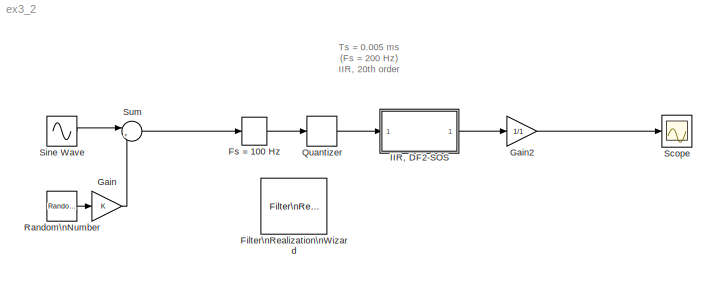
MODEL ex3_2
KIND model
BLOCK [Reference] Filter\nRealization\nWizard  REF=dsparch4/Filter\nRealization\nWizard
  FunctionWithSeparateData = off
  Ports = []
  RTWMemSecDataConstants = Inherit from model
  RTWMemSecDataInternal = Inherit from model
  RTWMemSecDataParameters = Inherit from model
  RTWMemSecFuncExecute = Inherit from model
  RTWMemSecFuncInitTerm = Inherit from model
  SID = 1
  ShowPortLabels = FromPortIcon
  SourceBlock = dsparch4/Filter\nRealization\nWizard
  SourceProductBaseCode = DS
  SourceProductName = DSP System Toolbox
  SourceType = Filter Realization Wizard
  SystemSampleTime = -1
BLOCK [ZeroOrderHold] Fs = 100 Hz
  SID = 2
  SampleTime = 0.01
BLOCK [Gain] Gain
  SID = 3
BLOCK [Gain] Gain2
  Gain = 1/1
  SID = 4
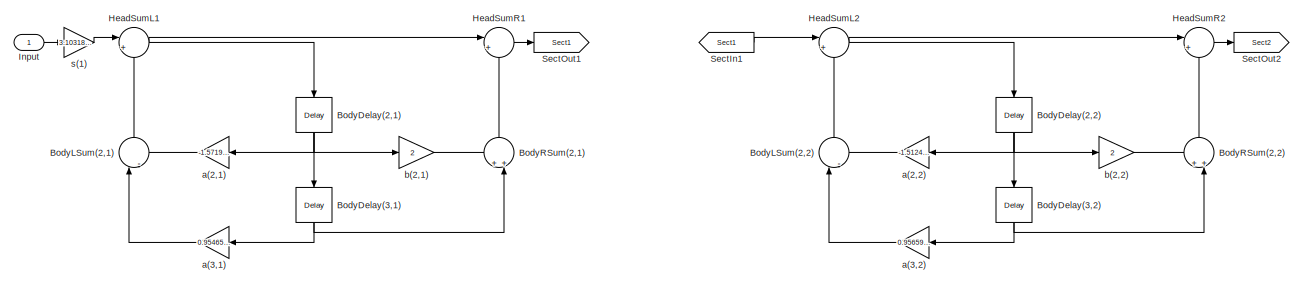
[diagram: IIR, DF2-SOS - part 1/6, left side, full height]
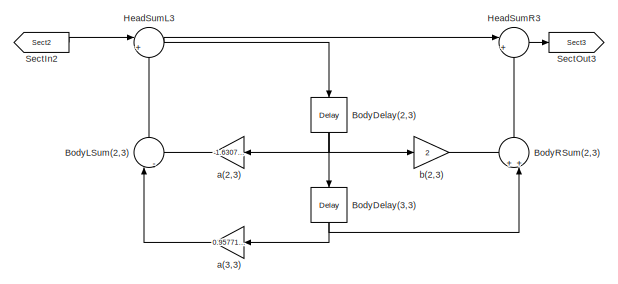
[diagram: IIR, DF2-SOS - part 2/6, left side, full height]
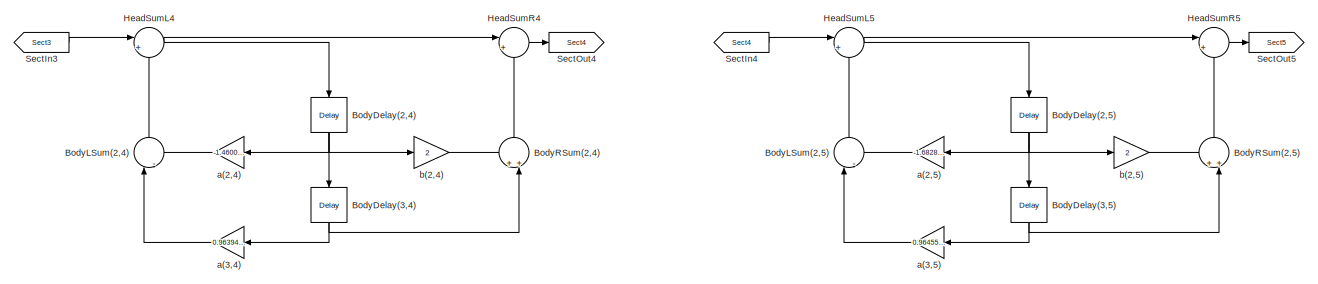
[diagram: IIR, DF2-SOS - part 3/6, center side, full height]
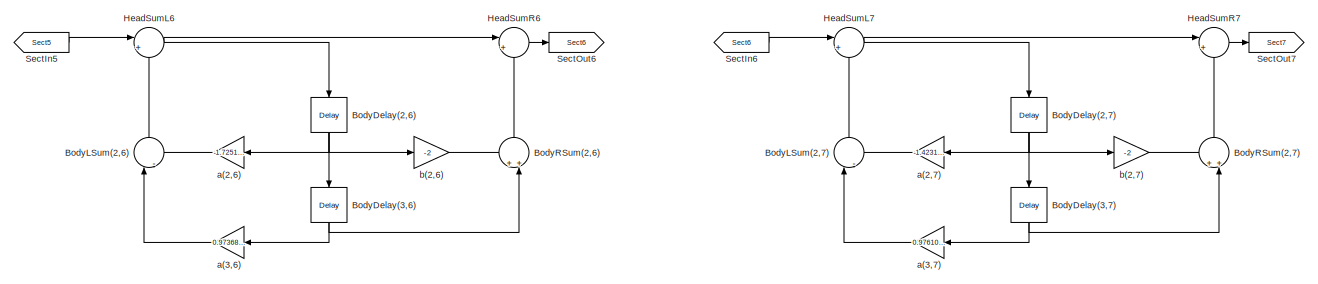
[diagram: IIR, DF2-SOS - part 4/6, center side, full height]
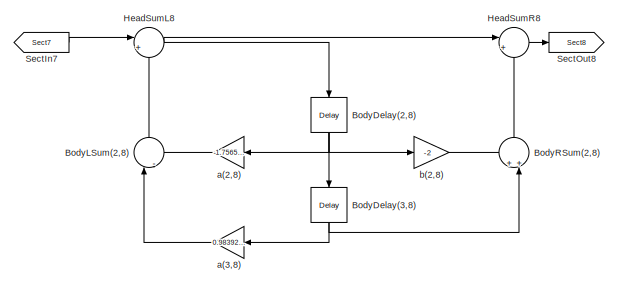
[diagram: IIR, DF2-SOS - part 5/6, right side, full height]
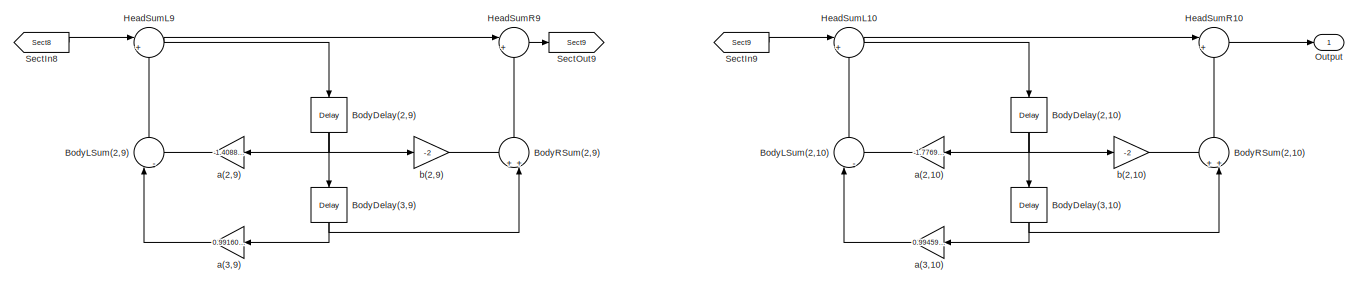
[diagram: IIR, DF2-SOS - part 6/6, right side, full height]
BLOCK [SubSystem] IIR, DF2-SOS
  Ports = [1, 1]
  RequestExecContextInheritance = off
  SID = 5
  Tag = FilterWizardSubSystem
BLOCK [Reference] IIR, DF2-SOS/BodyDelay(2,1)  REF=dspsigops/Delay
  Ports = [1, 1]
  SID = 7
  SourceBlock = dspsigops/Delay
  SourceProductBaseCode = DS
  SourceProductName = DSP System Toolbox
  SourceType = Delay
  delay = 1
  dif_ic_for_ch = off
  dif_ic_for_dly = off
  dly_unit = Samples
  ic = 0
  ic_detail = off
  reset_popup = None
BLOCK [Reference] IIR, DF2-SOS/BodyDelay(2,10)  REF=dspsigops/Delay
  Ports = [1, 1]
  SID = 8
  SourceBlock = dspsigops/Delay
  SourceProductBaseCode = DS
  SourceProductName = DSP System Toolbox
  SourceType = Delay
  delay = 1
  dif_ic_for_ch = off
  dif_ic_for_dly = off
  dly_unit = Samples
  ic = 0
  ic_detail = off
  reset_popup = None
BLOCK [Reference] IIR, DF2-SOS/BodyDelay(2,2)  REF=dspsigops/Delay
  Ports = [1, 1]
  SID = 9
  SourceBlock = dspsigops/Delay
  SourceProductBaseCode = DS
  SourceProductName = DSP System Toolbox
  SourceType = Delay
  delay = 1
  dif_ic_for_ch = off
  dif_ic_for_dly = off
  dly_unit = Samples
  ic = 0
  ic_detail = off
  reset_popup = None
BLOCK [Reference] IIR, DF2-SOS/BodyDelay(2,3)  REF=dspsigops/Delay
  Ports = [1, 1]
  SID = 10
  SourceBlock = dspsigops/Delay
  SourceProductBaseCode = DS
  SourceProductName = DSP System Toolbox
  SourceType = Delay
  delay = 1
  dif_ic_for_ch = off
  dif_ic_for_dly = off
  dly_unit = Samples
  ic = 0
  ic_detail = off
  reset_popup = None
BLOCK [Reference] IIR, DF2-SOS/BodyDelay(2,4)  REF=dspsigops/Delay
  Ports = [1, 1]
  SID = 11
  SourceBlock = dspsigops/Delay
  SourceProductBaseCode = DS
  SourceProductName = DSP System Toolbox
  SourceType = Delay
  delay = 1
  dif_ic_for_ch = off
  dif_ic_for_dly = off
  dly_unit = Samples
  ic = 0
  ic_detail = off
  reset_popup = None
BLOCK [Reference] IIR, DF2-SOS/BodyDelay(2,5)  REF=dspsigops/Delay
  Ports = [1, 1]
  SID = 12
  SourceBlock = dspsigops/Delay
  SourceProductBaseCode = DS
  SourceProductName = DSP System Toolbox
  SourceType = Delay
  delay = 1
  dif_ic_for_ch = off
  dif_ic_for_dly = off
  dly_unit = Samples
  ic = 0
  ic_detail = off
  reset_popup = None
BLOCK [Reference] IIR, DF2-SOS/BodyDelay(2,6)  REF=dspsigops/Delay
  Ports = [1, 1]
  SID = 13
  SourceBlock = dspsigops/Delay
  SourceProductBaseCode = DS
  SourceProductName = DSP System Toolbox
  SourceType = Delay
  delay = 1
  dif_ic_for_ch = off
  dif_ic_for_dly = off
  dly_unit = Samples
  ic = 0
  ic_detail = off
  reset_popup = None
BLOCK [Reference] IIR, DF2-SOS/BodyDelay(2,7)  REF=dspsigops/Delay
  Ports = [1, 1]
  SID = 14
  SourceBlock = dspsigops/Delay
  SourceProductBaseCode = DS
  SourceProductName = DSP System Toolbox
  SourceType = Delay
  delay = 1
  dif_ic_for_ch = off
  dif_ic_for_dly = off
  dly_unit = Samples
  ic = 0
  ic_detail = off
  reset_popup = None
BLOCK [Reference] IIR, DF2-SOS/BodyDelay(2,8)  REF=dspsigops/Delay
  Ports = [1, 1]
  SID = 15
  SourceBlock = dspsigops/Delay
  SourceProductBaseCode = DS
  SourceProductName = DSP System Toolbox
  SourceType = Delay
  delay = 1
  dif_ic_for_ch = off
  dif_ic_for_dly = off
  dly_unit = Samples
  ic = 0
  ic_detail = off
  reset_popup = None
BLOCK [Reference] IIR, DF2-SOS/BodyDelay(2,9)  REF=dspsigops/Delay
  Ports = [1, 1]
  SID = 16
  SourceBlock = dspsigops/Delay
  SourceProductBaseCode = DS
  SourceProductName = DSP System Toolbox
  SourceType = Delay
  delay = 1
  dif_ic_for_ch = off
  dif_ic_for_dly = off
  dly_unit = Samples
  ic = 0
  ic_detail = off
  reset_popup = None
BLOCK [Reference] IIR, DF2-SOS/BodyDelay(3,1)  REF=dspsigops/Delay
  Ports = [1, 1]
  SID = 17
  SourceBlock = dspsigops/Delay
  SourceProductBaseCode = DS
  SourceProductName = DSP System Toolbox
  SourceType = Delay
  delay = 1
  dif_ic_for_ch = off
  dif_ic_for_dly = off
  dly_unit = Samples
  ic = 0
  ic_detail = off
  reset_popup = None
BLOCK [Reference] IIR, DF2-SOS/BodyDelay(3,10)  REF=dspsigops/Delay
  Ports = [1, 1]
  SID = 18
  SourceBlock = dspsigops/Delay
  SourceProductBaseCode = DS
  SourceProductName = DSP System Toolbox
  SourceType = Delay
  delay = 1
  dif_ic_for_ch = off
  dif_ic_for_dly = off
  dly_unit = Samples
  ic = 0
  ic_detail = off
  reset_popup = None
BLOCK [Reference] IIR, DF2-SOS/BodyDelay(3,2)  REF=dspsigops/Delay
  Ports = [1, 1]
  SID = 19
  SourceBlock = dspsigops/Delay
  SourceProductBaseCode = DS
  SourceProductName = DSP System Toolbox
  SourceType = Delay
  delay = 1
  dif_ic_for_ch = off
  dif_ic_for_dly = off
  dly_unit = Samples
  ic = 0
  ic_detail = off
  reset_popup = None
BLOCK [Reference] IIR, DF2-SOS/BodyDelay(3,3)  REF=dspsigops/Delay
  Ports = [1, 1]
  SID = 20
  SourceBlock = dspsigops/Delay
  SourceProductBaseCode = DS
  SourceProductName = DSP System Toolbox
  SourceType = Delay
  delay = 1
  dif_ic_for_ch = off
  dif_ic_for_dly = off
  dly_unit = Samples
  ic = 0
  ic_detail = off
  reset_popup = None
BLOCK [Reference] IIR, DF2-SOS/BodyDelay(3,4)  REF=dspsigops/Delay
  Ports = [1, 1]
  SID = 21
  SourceBlock = dspsigops/Delay
  SourceProductBaseCode = DS
  SourceProductName = DSP System Toolbox
  SourceType = Delay
  delay = 1
  dif_ic_for_ch = off
  dif_ic_for_dly = off
  dly_unit = Samples
  ic = 0
  ic_detail = off
  reset_popup = None
BLOCK [Reference] IIR, DF2-SOS/BodyDelay(3,5)  REF=dspsigops/Delay
  Ports = [1, 1]
  SID = 22
  SourceBlock = dspsigops/Delay
  SourceProductBaseCode = DS
  SourceProductName = DSP System Toolbox
  SourceType = Delay
  delay = 1
  dif_ic_for_ch = off
  dif_ic_for_dly = off
  dly_unit = Samples
  ic = 0
  ic_detail = off
  reset_popup = None
BLOCK [Reference] IIR, DF2-SOS/BodyDelay(3,6)  REF=dspsigops/Delay
  Ports = [1, 1]
  SID = 23
  SourceBlock = dspsigops/Delay
  SourceProductBaseCode = DS
  SourceProductName = DSP System Toolbox
  SourceType = Delay
  delay = 1
  dif_ic_for_ch = off
  dif_ic_for_dly = off
  dly_unit = Samples
  ic = 0
  ic_detail = off
  reset_popup = None
BLOCK [Reference] IIR, DF2-SOS/BodyDelay(3,7)  REF=dspsigops/Delay
  Ports = [1, 1]
  SID = 24
  SourceBlock = dspsigops/Delay
  SourceProductBaseCode = DS
  SourceProductName = DSP System Toolbox
  SourceType = Delay
  delay = 1
  dif_ic_for_ch = off
  dif_ic_for_dly = off
  dly_unit = Samples
  ic = 0
  ic_detail = off
  reset_popup = None
BLOCK [Reference] IIR, DF2-SOS/BodyDelay(3,8)  REF=dspsigops/Delay
  Ports = [1, 1]
  SID = 25
  SourceBlock = dspsigops/Delay
  SourceProductBaseCode = DS
  SourceProductName = DSP System Toolbox
  SourceType = Delay
  delay = 1
  dif_ic_for_ch = off
  dif_ic_for_dly = off
  dly_unit = Samples
  ic = 0
  ic_detail = off
  reset_popup = None
BLOCK [Reference] IIR, DF2-SOS/BodyDelay(3,9)  REF=dspsigops/Delay
  Ports = [1, 1]
  SID = 26
  SourceBlock = dspsigops/Delay
  SourceProductBaseCode = DS
  SourceProductName = DSP System Toolbox
  SourceType = Delay
  delay = 1
  dif_ic_for_ch = off
  dif_ic_for_dly = off
  dly_unit = Samples
  ic = 0
  ic_detail = off
  reset_popup = None
BLOCK [Sum] IIR, DF2-SOS/BodyLSum(2,1)
  IconShape = round
  Inputs = |--
  Ports = [2, 1]
  SID = 27
BLOCK [Sum] IIR, DF2-SOS/BodyLSum(2,10)
  IconShape = round
  Inputs = |--
  Ports = [2, 1]
  SID = 28
BLOCK [Sum] IIR, DF2-SOS/BodyLSum(2,2)
  IconShape = round
  Inputs = |--
  Ports = [2, 1]
  SID = 29
BLOCK [Sum] IIR, DF2-SOS/BodyLSum(2,3)
  IconShape = round
  Inputs = |--
  Ports = [2, 1]
  SID = 30
BLOCK [Sum] IIR, DF2-SOS/BodyLSum(2,4)
  IconShape = round
  Inputs = |--
  Ports = [2, 1]
  SID = 31
BLOCK [Sum] IIR, DF2-SOS/BodyLSum(2,5)
  IconShape = round
  Inputs = |--
  Ports = [2, 1]
  SID = 32
BLOCK [Sum] IIR, DF2-SOS/BodyLSum(2,6)
  IconShape = round
  Inputs = |--
  Ports = [2, 1]
  SID = 33
BLOCK [Sum] IIR, DF2-SOS/BodyLSum(2,7)
  IconShape = round
  Inputs = |--
  Ports = [2, 1]
  SID = 34
BLOCK [Sum] IIR, DF2-SOS/BodyLSum(2,8)
  IconShape = round
  Inputs = |--
  Ports = [2, 1]
  SID = 35
BLOCK [Sum] IIR, DF2-SOS/BodyLSum(2,9)
  IconShape = round
  Inputs = |--
  Ports = [2, 1]
  SID = 36
BLOCK [Sum] IIR, DF2-SOS/BodyRSum(2,1)
  IconShape = round
  Inputs = ++|
  Ports = [2, 1]
  SID = 37
BLOCK [Sum] IIR, DF2-SOS/BodyRSum(2,10)
  IconShape = round
  Inputs = ++|
  Ports = [2, 1]
  SID = 38
BLOCK [Sum] IIR, DF2-SOS/BodyRSum(2,2)
  IconShape = round
  Inputs = ++|
  Ports = [2, 1]
  SID = 39
BLOCK [Sum] IIR, DF2-SOS/BodyRSum(2,3)
  IconShape = round
  Inputs = ++|
  Ports = [2, 1]
  SID = 40
BLOCK [Sum] IIR, DF2-SOS/BodyRSum(2,4)
  IconShape = round
  Inputs = ++|
  Ports = [2, 1]
  SID = 41
BLOCK [Sum] IIR, DF2-SOS/BodyRSum(2,5)
  IconShape = round
  Inputs = ++|
  Ports = [2, 1]
  SID = 42
BLOCK [Sum] IIR, DF2-SOS/BodyRSum(2,6)
  IconShape = round
  Inputs = ++|
  Ports = [2, 1]
  SID = 43
BLOCK [Sum] IIR, DF2-SOS/BodyRSum(2,7)
  IconShape = round
  Inputs = ++|
  Ports = [2, 1]
  SID = 44
BLOCK [Sum] IIR, DF2-SOS/BodyRSum(2,8)
  IconShape = round
  Inputs = ++|
  Ports = [2, 1]
  SID = 45
BLOCK [Sum] IIR, DF2-SOS/BodyRSum(2,9)
  IconShape = round
  Inputs = ++|
  Ports = [2, 1]
  SID = 46
BLOCK [Sum] IIR, DF2-SOS/HeadSumL1
  IconShape = round
  Inputs = |++
  Ports = [2, 1]
  SID = 47
BLOCK [Sum] IIR, DF2-SOS/HeadSumL10
  IconShape = round
  Inputs = |++
  Ports = [2, 1]
  SID = 48
BLOCK [Sum] IIR, DF2-SOS/HeadSumL2
  IconShape = round
  Inputs = |++
  Ports = [2, 1]
  SID = 49
BLOCK [Sum] IIR, DF2-SOS/HeadSumL3
  IconShape = round
  Inputs = |++
  Ports = [2, 1]
  SID = 50
BLOCK [Sum] IIR, DF2-SOS/HeadSumL4
  IconShape = round
  Inputs = |++
  Ports = [2, 1]
  SID = 51
BLOCK [Sum] IIR, DF2-SOS/HeadSumL5
  IconShape = round
  Inputs = |++
  Ports = [2, 1]
  SID = 52
BLOCK [Sum] IIR, DF2-SOS/HeadSumL6
  IconShape = round
  Inputs = |++
  Ports = [2, 1]
  SID = 53
BLOCK [Sum] IIR, DF2-SOS/HeadSumL7
  IconShape = round
  Inputs = |++
  Ports = [2, 1]
  SID = 54
BLOCK [Sum] IIR, DF2-SOS/HeadSumL8
  IconShape = round
  Inputs = |++
  Ports = [2, 1]
  SID = 55
BLOCK [Sum] IIR, DF2-SOS/HeadSumL9
  IconShape = round
  Inputs = |++
  Ports = [2, 1]
  SID = 56
BLOCK [Sum] IIR, DF2-SOS/HeadSumR1
  IconShape = round
  Inputs = |++
  Ports = [2, 1]
  SID = 57
BLOCK [Sum] IIR, DF2-SOS/HeadSumR10
  IconShape = round
  Inputs = |++
  Ports = [2, 1]
  SID = 58
BLOCK [Sum] IIR, DF2-SOS/HeadSumR2
  IconShape = round
  Inputs = |++
  Ports = [2, 1]
  SID = 59
BLOCK [Sum] IIR, DF2-SOS/HeadSumR3
  IconShape = round
  Inputs = |++
  Ports = [2, 1]
  SID = 60
BLOCK [Sum] IIR, DF2-SOS/HeadSumR4
  IconShape = round
  Inputs = |++
  Ports = [2, 1]
  SID = 61
BLOCK [Sum] IIR, DF2-SOS/HeadSumR5
  IconShape = round
  Inputs = |++
  Ports = [2, 1]
  SID = 62
BLOCK [Sum] IIR, DF2-SOS/HeadSumR6
  IconShape = round
  Inputs = |++
  Ports = [2, 1]
  SID = 63
BLOCK [Sum] IIR, DF2-SOS/HeadSumR7
  IconShape = round
  Inputs = |++
  Ports = [2, 1]
  SID = 64
BLOCK [Sum] IIR, DF2-SOS/HeadSumR8
  IconShape = round
  Inputs = |++
  Ports = [2, 1]
  SID = 65
BLOCK [Sum] IIR, DF2-SOS/HeadSumR9
  IconShape = round
  Inputs = |++
  Ports = [2, 1]
  SID = 66
BLOCK [Inport] IIR, DF2-SOS/Input
  IconDisplay = Port number
  SID = 6
BLOCK [Outport] IIR, DF2-SOS/Output
  IconDisplay = Port number
  SID = 116
BLOCK [From] IIR, DF2-SOS/SectIn1
  GotoTag = Sect1
  SID = 67
BLOCK [From] IIR, DF2-SOS/SectIn2
  GotoTag = Sect2
  SID = 68
BLOCK [From] IIR, DF2-SOS/SectIn3
  GotoTag = Sect3
  SID = 69
BLOCK [From] IIR, DF2-SOS/SectIn4
  GotoTag = Sect4
  SID = 70
BLOCK [From] IIR, DF2-SOS/SectIn5
  GotoTag = Sect5
  SID = 71
BLOCK [From] IIR, DF2-SOS/SectIn6
  GotoTag = Sect6
  SID = 72
BLOCK [From] IIR, DF2-SOS/SectIn7
  GotoTag = Sect7
  SID = 73
BLOCK [From] IIR, DF2-SOS/SectIn8
  GotoTag = Sect8
  SID = 74
BLOCK [From] IIR, DF2-SOS/SectIn9
  GotoTag = Sect9
  SID = 75
BLOCK [Goto] IIR, DF2-SOS/SectOut1
  GotoTag = Sect1
  SID = 76
BLOCK [Goto] IIR, DF2-SOS/SectOut2
  GotoTag = Sect2
  SID = 77
BLOCK [Goto] IIR, DF2-SOS/SectOut3
  GotoTag = Sect3
  SID = 78
BLOCK [Goto] IIR, DF2-SOS/SectOut4
  GotoTag = Sect4
  SID = 79
BLOCK [Goto] IIR, DF2-SOS/SectOut5
  GotoTag = Sect5
  SID = 80
BLOCK [Goto] IIR, DF2-SOS/SectOut6
  GotoTag = Sect6
  SID = 81
BLOCK [Goto] IIR, DF2-SOS/SectOut7
  GotoTag = Sect7
  SID = 82
BLOCK [Goto] IIR, DF2-SOS/SectOut8
  GotoTag = Sect8
  SID = 83
BLOCK [Goto] IIR, DF2-SOS/SectOut9
  GotoTag = Sect9
  SID = 84
BLOCK [Gain] IIR, DF2-SOS/a(2,1)
  Gain = -1.571957134859189
  SID = 85
BLOCK [Gain] IIR, DF2-SOS/a(2,10)
  Gain = -1.7769550987684477
  SID = 86
BLOCK [Gain] IIR, DF2-SOS/a(2,2)
  Gain = -1.5124257199420734
  SID = 87
BLOCK [Gain] IIR, DF2-SOS/a(2,3)
  Gain = -1.6307005687554179
  SID = 88
BLOCK [Gain] IIR, DF2-SOS/a(2,4)
  Gain = -1.4600014510225412
  SID = 89
BLOCK [Gain] IIR, DF2-SOS/a(2,5)
  Gain = -1.6828450672852706
  SID = 90
BLOCK [Gain] IIR, DF2-SOS/a(2,6)
  Gain = -1.7251650011265589
  SID = 91
BLOCK [Gain] IIR, DF2-SOS/a(2,7)
  Gain = -1.4231462269960193
  SID = 92
BLOCK [Gain] IIR, DF2-SOS/a(2,8)
  Gain = -1.7565348237792877
  SID = 93
BLOCK [Gain] IIR, DF2-SOS/a(2,9)
  Gain = -1.4088593630292474
  SID = 94
BLOCK [Gain] IIR, DF2-SOS/a(3,1)
  Gain = 0.95465049539857993
  SID = 95
BLOCK [Gain] IIR, DF2-SOS/a(3,10)
  Gain = 0.99459446942844321
  SID = 96
BLOCK [Gain] IIR, DF2-SOS/a(3,2)
  Gain = 0.95659285365218705
  SID = 97
BLOCK [Gain] IIR, DF2-SOS/a(3,3)
  Gain = 0.95771345361769511
  SID = 98
BLOCK [Gain] IIR, DF2-SOS/a(3,4)
  Gain = 0.96394950197178042
  SID = 99
BLOCK [Gain] IIR, DF2-SOS/a(3,5)
  Gain = 0.96455327914854605
  SID = 100
BLOCK [Gain] IIR, DF2-SOS/a(3,6)
  Gain = 0.97368699157284444
  SID = 101
BLOCK [Gain] IIR, DF2-SOS/a(3,7)
  Gain = 0.97610378923932517
  SID = 102
BLOCK [Gain] IIR, DF2-SOS/a(3,8)
  Gain = 0.98392539423157888
  SID = 103
BLOCK [Gain] IIR, DF2-SOS/a(3,9)
  Gain = 0.99160121115624866
  SID = 104
BLOCK [Gain] IIR, DF2-SOS/b(2,1)
  Gain = 2
  SID = 105
BLOCK [Gain] IIR, DF2-SOS/b(2,10)
  Gain = -2
  SID = 106
BLOCK [Gain] IIR, DF2-SOS/b(2,2)
  Gain = 2
  SID = 107
BLOCK [Gain] IIR, DF2-SOS/b(2,3)
  Gain = 2
  SID = 108
BLOCK [Gain] IIR, DF2-SOS/b(2,4)
  Gain = 2
  SID = 109
BLOCK [Gain] IIR, DF2-SOS/b(2,5)
  Gain = 2
  SID = 110
BLOCK [Gain] IIR, DF2-SOS/b(2,6)
  Gain = -2
  SID = 111
BLOCK [Gain] IIR, DF2-SOS/b(2,7)
  Gain = -2
  SID = 112
BLOCK [Gain] IIR, DF2-SOS/b(2,8)
  Gain = -2
  SID = 113
BLOCK [Gain] IIR, DF2-SOS/b(2,9)
  Gain = -2
  SID = 114
BLOCK [Gain] IIR, DF2-SOS/s(1)
  Gain = 3.1031894864125959e-011
  SID = 115
BLOCK [Quantizer] Quantizer
  LinearizeAsGain = off
  QuantizationInterval = 2/(2^6-1)
  SID = 117
BLOCK [RandomNumber] Random\nNumber
  SID = 118
  SampleTime = 0
  Variance = 1e-6
BLOCK [Scope] Scope
  Floating = off
  NumInputPorts = 1
  Ports = [1]
  SID = 119
  ScopeSpecificationString = C++SS(StrPVP('Location','[847, 449, 1201, 707]'),StrPVP('Open','off'),MxPVP('AxesTitles',54,'struct(''axes1'',''%<SignalLabel>'')'),StrPVP('TimeRange','1'),StrPVP('YMin','-1.5'),StrPVP('YMax','1.5'),StrPVP('SaveToWorkspace','on'),StrPVP('SaveName','y1'),StrPVP('DataFormat','StructureWithTime'),StrPVP('LimitDataPoints','on'),StrPVP('Decimation','1'),StrPVP('BlockParamSampleInput','off'))
BLOCK [Sin] Sine Wave
  Frequency = 2*pi*20
  Ports = [0, 1]
  SID = 120
  SampleTime = 0
BLOCK [Sum] Sum
  IconShape = round
  InputSameDT = off
  Inputs = |++
  OutDataTypeStr = Inherit: Inherit via internal rule
  Ports = [2, 1]
  SID = 121
ANNOTATION (root): Ts = 0.005 ms\n(Fs = 200 Hz)\nIIR, 20th order
LINE Fs = 100 Hz:1 -> Quantizer:1
LINE Gain2:1 -> Scope:1
LINE Gain:1 -> Sum:2
NET IIR, DF2-SOS/BodyDelay(2,1):1 -> IIR, DF2-SOS/BodyDelay(3,1):1, IIR, DF2-SOS/a(2,1):1, IIR, DF2-SOS/b(2,1):1
NET IIR, DF2-SOS/BodyDelay(2,10):1 -> IIR, DF2-SOS/BodyDelay(3,10):1, IIR, DF2-SOS/a(2,10):1, IIR, DF2-SOS/b(2,10):1
NET IIR, DF2-SOS/BodyDelay(2,2):1 -> IIR, DF2-SOS/BodyDelay(3,2):1, IIR, DF2-SOS/a(2,2):1, IIR, DF2-SOS/b(2,2):1
NET IIR, DF2-SOS/BodyDelay(2,3):1 -> IIR, DF2-SOS/BodyDelay(3,3):1, IIR, DF2-SOS/a(2,3):1, IIR, DF2-SOS/b(2,3):1
NET IIR, DF2-SOS/BodyDelay(2,4):1 -> IIR, DF2-SOS/BodyDelay(3,4):1, IIR, DF2-SOS/a(2,4):1, IIR, DF2-SOS/b(2,4):1
NET IIR, DF2-SOS/BodyDelay(2,5):1 -> IIR, DF2-SOS/BodyDelay(3,5):1, IIR, DF2-SOS/a(2,5):1, IIR, DF2-SOS/b(2,5):1
NET IIR, DF2-SOS/BodyDelay(2,6):1 -> IIR, DF2-SOS/BodyDelay(3,6):1, IIR, DF2-SOS/a(2,6):1, IIR, DF2-SOS/b(2,6):1
NET IIR, DF2-SOS/BodyDelay(2,7):1 -> IIR, DF2-SOS/BodyDelay(3,7):1, IIR, DF2-SOS/a(2,7):1, IIR, DF2-SOS/b(2,7):1
NET IIR, DF2-SOS/BodyDelay(2,8):1 -> IIR, DF2-SOS/BodyDelay(3,8):1, IIR, DF2-SOS/a(2,8):1, IIR, DF2-SOS/b(2,8):1
NET IIR, DF2-SOS/BodyDelay(2,9):1 -> IIR, DF2-SOS/BodyDelay(3,9):1, IIR, DF2-SOS/a(2,9):1, IIR, DF2-SOS/b(2,9):1
NET IIR, DF2-SOS/BodyDelay(3,1):1 -> IIR, DF2-SOS/BodyRSum(2,1):2, IIR, DF2-SOS/a(3,1):1
NET IIR, DF2-SOS/BodyDelay(3,10):1 -> IIR, DF2-SOS/BodyRSum(2,10):2, IIR, DF2-SOS/a(3,10):1
NET IIR, DF2-SOS/BodyDelay(3,2):1 -> IIR, DF2-SOS/BodyRSum(2,2):2, IIR, DF2-SOS/a(3,2):1
NET IIR, DF2-SOS/BodyDelay(3,3):1 -> IIR, DF2-SOS/BodyRSum(2,3):2, IIR, DF2-SOS/a(3,3):1
NET IIR, DF2-SOS/BodyDelay(3,4):1 -> IIR, DF2-SOS/BodyRSum(2,4):2, IIR, DF2-SOS/a(3,4):1
NET IIR, DF2-SOS/BodyDelay(3,5):1 -> IIR, DF2-SOS/BodyRSum(2,5):2, IIR, DF2-SOS/a(3,5):1
NET IIR, DF2-SOS/BodyDelay(3,6):1 -> IIR, DF2-SOS/BodyRSum(2,6):2, IIR, DF2-SOS/a(3,6):1
NET IIR, DF2-SOS/BodyDelay(3,7):1 -> IIR, DF2-SOS/BodyRSum(2,7):2, IIR, DF2-SOS/a(3,7):1
NET IIR, DF2-SOS/BodyDelay(3,8):1 -> IIR, DF2-SOS/BodyRSum(2,8):2, IIR, DF2-SOS/a(3,8):1
NET IIR, DF2-SOS/BodyDelay(3,9):1 -> IIR, DF2-SOS/BodyRSum(2,9):2, IIR, DF2-SOS/a(3,9):1
LINE IIR, DF2-SOS/BodyLSum(2,1):1 -> IIR, DF2-SOS/HeadSumL1:2
LINE IIR, DF2-SOS/BodyLSum(2,10):1 -> IIR, DF2-SOS/HeadSumL10:2
LINE IIR, DF2-SOS/BodyLSum(2,2):1 -> IIR, DF2-SOS/HeadSumL2:2
LINE IIR, DF2-SOS/BodyLSum(2,3):1 -> IIR, DF2-SOS/HeadSumL3:2
LINE IIR, DF2-SOS/BodyLSum(2,4):1 -> IIR, DF2-SOS/HeadSumL4:2
LINE IIR, DF2-SOS/BodyLSum(2,5):1 -> IIR, DF2-SOS/HeadSumL5:2
LINE IIR, DF2-SOS/BodyLSum(2,6):1 -> IIR, DF2-SOS/HeadSumL6:2
LINE IIR, DF2-SOS/BodyLSum(2,7):1 -> IIR, DF2-SOS/HeadSumL7:2
LINE IIR, DF2-SOS/BodyLSum(2,8):1 -> IIR, DF2-SOS/HeadSumL8:2
LINE IIR, DF2-SOS/BodyLSum(2,9):1 -> IIR, DF2-SOS/HeadSumL9:2
LINE IIR, DF2-SOS/BodyRSum(2,1):1 -> IIR, DF2-SOS/HeadSumR1:2
LINE IIR, DF2-SOS/BodyRSum(2,10):1 -> IIR, DF2-SOS/HeadSumR10:2
LINE IIR, DF2-SOS/BodyRSum(2,2):1 -> IIR, DF2-SOS/HeadSumR2:2
LINE IIR, DF2-SOS/BodyRSum(2,3):1 -> IIR, DF2-SOS/HeadSumR3:2
LINE IIR, DF2-SOS/BodyRSum(2,4):1 -> IIR, DF2-SOS/HeadSumR4:2
LINE IIR, DF2-SOS/BodyRSum(2,5):1 -> IIR, DF2-SOS/HeadSumR5:2
LINE IIR, DF2-SOS/BodyRSum(2,6):1 -> IIR, DF2-SOS/HeadSumR6:2
LINE IIR, DF2-SOS/BodyRSum(2,7):1 -> IIR, DF2-SOS/HeadSumR7:2
LINE IIR, DF2-SOS/BodyRSum(2,8):1 -> IIR, DF2-SOS/HeadSumR8:2
LINE IIR, DF2-SOS/BodyRSum(2,9):1 -> IIR, DF2-SOS/HeadSumR9:2
NET IIR, DF2-SOS/HeadSumL10:1 -> IIR, DF2-SOS/BodyDelay(2,10):1, IIR, DF2-SOS/HeadSumR10:1
NET IIR, DF2-SOS/HeadSumL1:1 -> IIR, DF2-SOS/BodyDelay(2,1):1, IIR, DF2-SOS/HeadSumR1:1
NET IIR, DF2-SOS/HeadSumL2:1 -> IIR, DF2-SOS/BodyDelay(2,2):1, IIR, DF2-SOS/HeadSumR2:1
NET IIR, DF2-SOS/HeadSumL3:1 -> IIR, DF2-SOS/BodyDelay(2,3):1, IIR, DF2-SOS/HeadSumR3:1
NET IIR, DF2-SOS/HeadSumL4:1 -> IIR, DF2-SOS/BodyDelay(2,4):1, IIR, DF2-SOS/HeadSumR4:1
NET IIR, DF2-SOS/HeadSumL5:1 -> IIR, DF2-SOS/BodyDelay(2,5):1, IIR, DF2-SOS/HeadSumR5:1
NET IIR, DF2-SOS/HeadSumL6:1 -> IIR, DF2-SOS/BodyDelay(2,6):1, IIR, DF2-SOS/HeadSumR6:1
NET IIR, DF2-SOS/HeadSumL7:1 -> IIR, DF2-SOS/BodyDelay(2,7):1, IIR, DF2-SOS/HeadSumR7:1
NET IIR, DF2-SOS/HeadSumL8:1 -> IIR, DF2-SOS/BodyDelay(2,8):1, IIR, DF2-SOS/HeadSumR8:1
NET IIR, DF2-SOS/HeadSumL9:1 -> IIR, DF2-SOS/BodyDelay(2,9):1, IIR, DF2-SOS/HeadSumR9:1
LINE IIR, DF2-SOS/HeadSumR10:1 -> IIR, DF2-SOS/Output:1
LINE IIR, DF2-SOS/HeadSumR1:1 -> IIR, DF2-SOS/SectOut1:1
LINE IIR, DF2-SOS/HeadSumR2:1 -> IIR, DF2-SOS/SectOut2:1
LINE IIR, DF2-SOS/HeadSumR3:1 -> IIR, DF2-SOS/SectOut3:1
LINE IIR, DF2-SOS/HeadSumR4:1 -> IIR, DF2-SOS/SectOut4:1
LINE IIR, DF2-SOS/HeadSumR5:1 -> IIR, DF2-SOS/SectOut5:1
LINE IIR, DF2-SOS/HeadSumR6:1 -> IIR, DF2-SOS/SectOut6:1
LINE IIR, DF2-SOS/HeadSumR7:1 -> IIR, DF2-SOS/SectOut7:1
LINE IIR, DF2-SOS/HeadSumR8:1 -> IIR, DF2-SOS/SectOut8:1
LINE IIR, DF2-SOS/HeadSumR9:1 -> IIR, DF2-SOS/SectOut9:1
LINE IIR, DF2-SOS/Input:1 -> IIR, DF2-SOS/s(1):1
LINE IIR, DF2-SOS/SectIn1:1 -> IIR, DF2-SOS/HeadSumL2:1
LINE IIR, DF2-SOS/SectIn2:1 -> IIR, DF2-SOS/HeadSumL3:1
LINE IIR, DF2-SOS/SectIn3:1 -> IIR, DF2-SOS/HeadSumL4:1
LINE IIR, DF2-SOS/SectIn4:1 -> IIR, DF2-SOS/HeadSumL5:1
LINE IIR, DF2-SOS/SectIn5:1 -> IIR, DF2-SOS/HeadSumL6:1
LINE IIR, DF2-SOS/SectIn6:1 -> IIR, DF2-SOS/HeadSumL7:1
LINE IIR, DF2-SOS/SectIn7:1 -> IIR, DF2-SOS/HeadSumL8:1
LINE IIR, DF2-SOS/SectIn8:1 -> IIR, DF2-SOS/HeadSumL9:1
LINE IIR, DF2-SOS/SectIn9:1 -> IIR, DF2-SOS/HeadSumL10:1
LINE IIR, DF2-SOS/a(2,1):1 -> IIR, DF2-SOS/BodyLSum(2,1):2
LINE IIR, DF2-SOS/a(2,10):1 -> IIR, DF2-SOS/BodyLSum(2,10):2
LINE IIR, DF2-SOS/a(2,2):1 -> IIR, DF2-SOS/BodyLSum(2,2):2
LINE IIR, DF2-SOS/a(2,3):1 -> IIR, DF2-SOS/BodyLSum(2,3):2
LINE IIR, DF2-SOS/a(2,4):1 -> IIR, DF2-SOS/BodyLSum(2,4):2
LINE IIR, DF2-SOS/a(2,5):1 -> IIR, DF2-SOS/BodyLSum(2,5):2
LINE IIR, DF2-SOS/a(2,6):1 -> IIR, DF2-SOS/BodyLSum(2,6):2
LINE IIR, DF2-SOS/a(2,7):1 -> IIR, DF2-SOS/BodyLSum(2,7):2
LINE IIR, DF2-SOS/a(2,8):1 -> IIR, DF2-SOS/BodyLSum(2,8):2
LINE IIR, DF2-SOS/a(2,9):1 -> IIR, DF2-SOS/BodyLSum(2,9):2
LINE IIR, DF2-SOS/a(3,1):1 -> IIR, DF2-SOS/BodyLSum(2,1):1
LINE IIR, DF2-SOS/a(3,10):1 -> IIR, DF2-SOS/BodyLSum(2,10):1
LINE IIR, DF2-SOS/a(3,2):1 -> IIR, DF2-SOS/BodyLSum(2,2):1
LINE IIR, DF2-SOS/a(3,3):1 -> IIR, DF2-SOS/BodyLSum(2,3):1
LINE IIR, DF2-SOS/a(3,4):1 -> IIR, DF2-SOS/BodyLSum(2,4):1
LINE IIR, DF2-SOS/a(3,5):1 -> IIR, DF2-SOS/BodyLSum(2,5):1
LINE IIR, DF2-SOS/a(3,6):1 -> IIR, DF2-SOS/BodyLSum(2,6):1
LINE IIR, DF2-SOS/a(3,7):1 -> IIR, DF2-SOS/BodyLSum(2,7):1
LINE IIR, DF2-SOS/a(3,8):1 -> IIR, DF2-SOS/BodyLSum(2,8):1
LINE IIR, DF2-SOS/a(3,9):1 -> IIR, DF2-SOS/BodyLSum(2,9):1
LINE IIR, DF2-SOS/b(2,1):1 -> IIR, DF2-SOS/BodyRSum(2,1):1
LINE IIR, DF2-SOS/b(2,10):1 -> IIR, DF2-SOS/BodyRSum(2,10):1
LINE IIR, DF2-SOS/b(2,2):1 -> IIR, DF2-SOS/BodyRSum(2,2):1
LINE IIR, DF2-SOS/b(2,3):1 -> IIR, DF2-SOS/BodyRSum(2,3):1
LINE IIR, DF2-SOS/b(2,4):1 -> IIR, DF2-SOS/BodyRSum(2,4):1
LINE IIR, DF2-SOS/b(2,5):1 -> IIR, DF2-SOS/BodyRSum(2,5):1
LINE IIR, DF2-SOS/b(2,6):1 -> IIR, DF2-SOS/BodyRSum(2,6):1
LINE IIR, DF2-SOS/b(2,7):1 -> IIR, DF2-SOS/BodyRSum(2,7):1
LINE IIR, DF2-SOS/b(2,8):1 -> IIR, DF2-SOS/BodyRSum(2,8):1
LINE IIR, DF2-SOS/b(2,9):1 -> IIR, DF2-SOS/BodyRSum(2,9):1
LINE IIR, DF2-SOS/s(1):1 -> IIR, DF2-SOS/HeadSumL1:1
LINE IIR, DF2-SOS:1 -> Gain2:1
LINE Quantizer:1 -> IIR, DF2-SOS:1
LINE Random\nNumber:1 -> Gain:1
LINE Sine Wave:1 -> Sum:1
LINE Sum:1 -> Fs = 100 Hz:1
note: NET lines group one-source signal fan-out (src -> all destinations, sorted); 1:1 wires keep LINE
